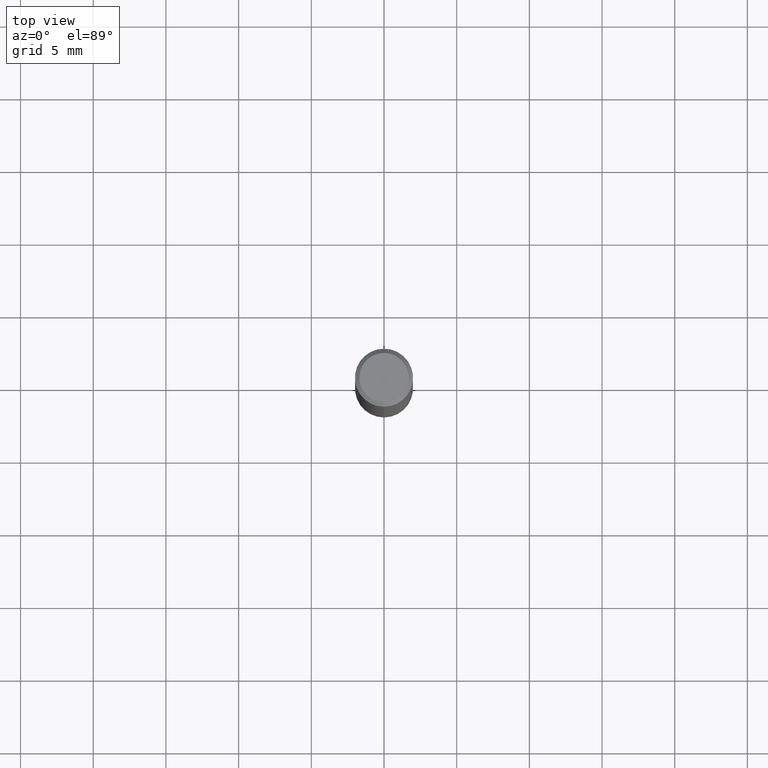
[diagram: clean part render]
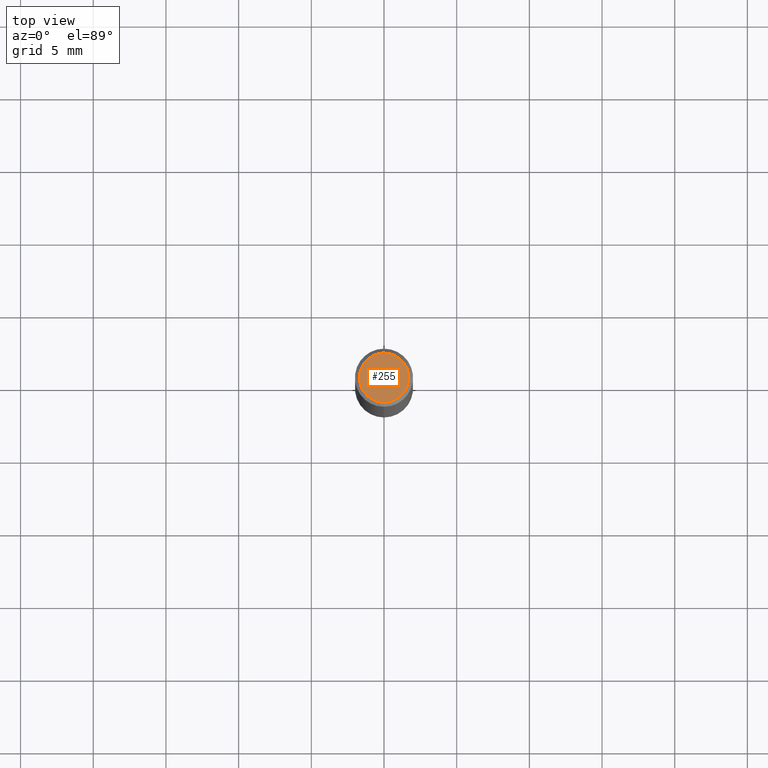
[diagram: same view with one face highlighted and labeled with its STEP entity id]
A machine part, top view. The second image highlights one B-rep face of the part: STEP entity #255.
In plain terms, the highlighted planar face has unit normal (-0, 0, 1).
Its self-contained STEP definition (entity closure, byte-faithful):
#255=ADVANCED_FACE('',(#502),#503,.T.);
#299=EDGE_CURVE('',#305,#347,#555,.T.);
#305=VERTEX_POINT('',#561);
#335=EDGE_CURVE('',#347,#305,#595,.T.);
#347=VERTEX_POINT('',#611);
#502=FACE_OUTER_BOUND('',#790,.T.);
#503=PLANE('',#791);
#555=CIRCLE('',#855,1.7);
#561=CARTESIAN_POINT('',(2.08183080149804E-016,-1.7,0.00999999999999801));
#595=CIRCLE('',#913,1.7);
#611=CARTESIAN_POINT('',(0.0,1.7,0.00999999999999801));
#790=EDGE_LOOP('',(#1092,#1093));
#791=AXIS2_PLACEMENT_3D('',#1094,#1095,#1096);
#855=AXIS2_PLACEMENT_3D('',#1169,#1170,#1171);
#913=AXIS2_PLACEMENT_3D('',#1217,#1218,#1219);
#1092=ORIENTED_EDGE('',*,*,#335,.F.);
#1093=ORIENTED_EDGE('',*,*,#299,.F.);
#1094=CARTESIAN_POINT('',(0.0,0.85,0.00999999999999801));
#1095=DIRECTION('',(-0.0,0.0,1.0));
#1096=DIRECTION('',(0.0,-1.0,0.0));
#1169=CARTESIAN_POINT('',(0.0,0.0,0.00999999999999801));
#1170=DIRECTION('',(0.0,0.0,-1.0));
#1171=DIRECTION('',(0.0,1.0,0.0));
#1217=CARTESIAN_POINT('',(0.0,0.0,0.00999999999999801));
#1218=DIRECTION('',(0.0,0.0,-1.0));
#1219=DIRECTION('',(0.0,1.0,0.0));